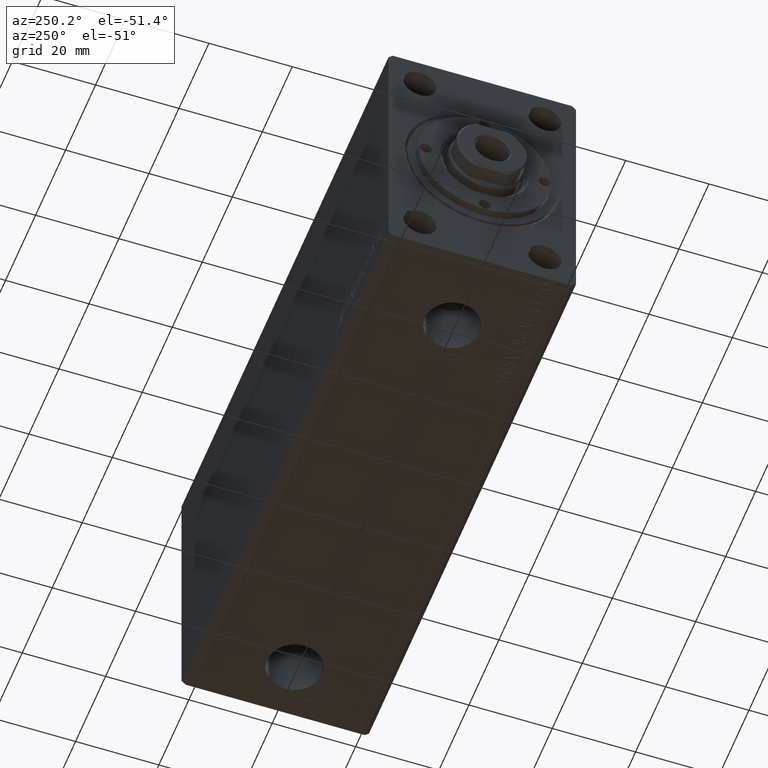
[diagram: clean part render]
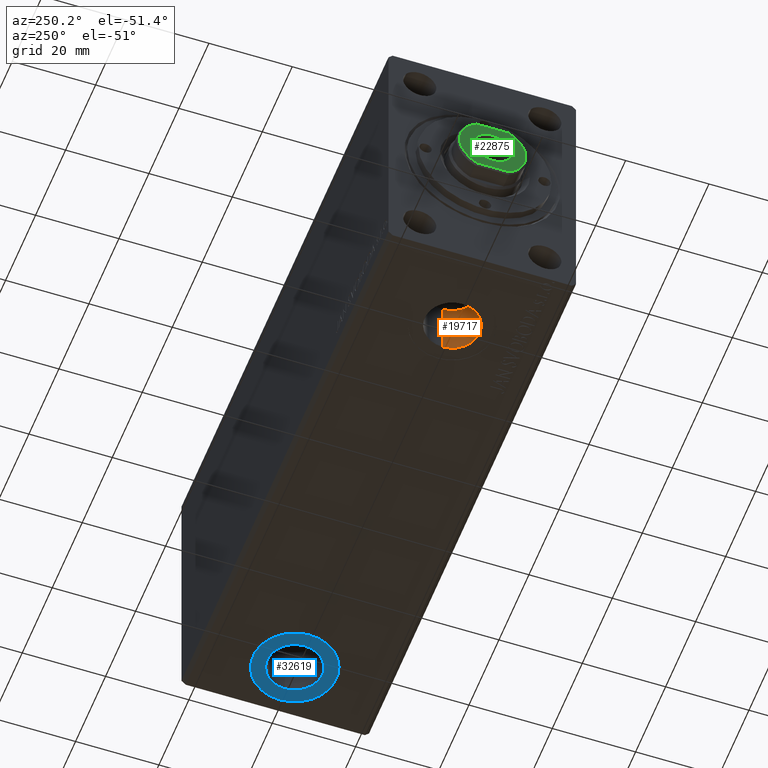
[diagram: same view with three faces highlighted in distinct colors, each labeled with its STEP entity id]
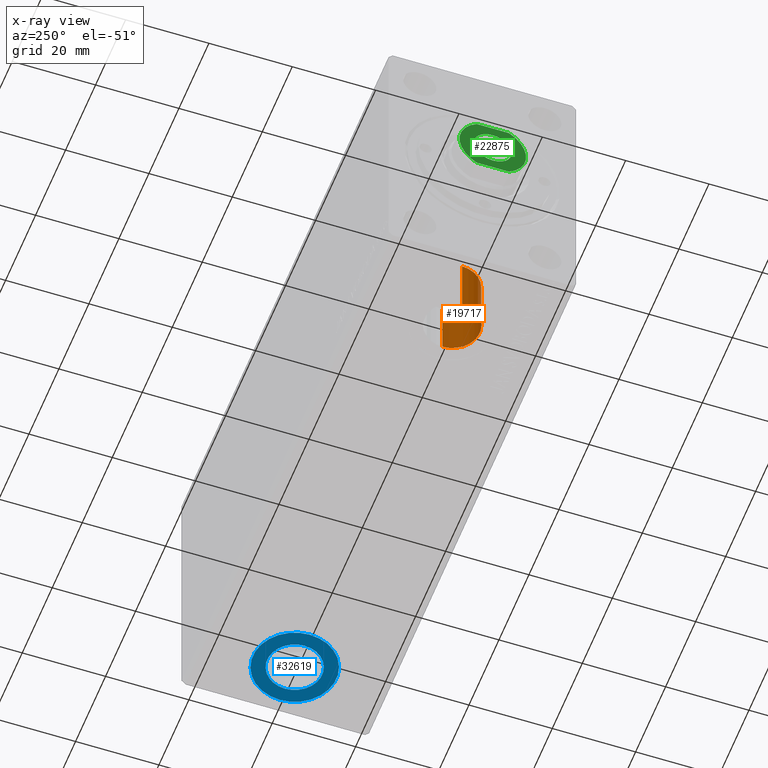
[diagram: x-ray of the same camera — body ghosted, the three highlighted faces saturated]
A machine part, auxiliary view with three faces highlighted in distinct colors.
The next image is the same camera in x-ray (body ghosted, the three faces saturated) — at least one of them is partly hidden behind the body in this view.
Their STEP definitions:

[orange] entity #19717 — the highlighted cylindrical surface (edge-blend (fillet) strip) has radius 6.58 mm, axis along (-0, -0, -1).
#35 = DIRECTION ( 'NONE',  ( -0.000000000000000000, -0.000000000000000000, -1.000000000000000000 ) ) ;
#1018 = VERTEX_POINT ( 'NONE', #38864 ) ;
#1899 = DIRECTION ( 'NONE',  ( -1.000000000000000000, 0.000000000000000000, 0.000000000000000000 ) ) ;
#2824 = DIRECTION ( 'NONE',  ( -0.000000000000000000, -0.000000000000000000, -1.000000000000000000 ) ) ;
#5784 = EDGE_CURVE ( 'NONE', #10320, #1018, #23450, .T. ) ;
#5851 = CARTESIAN_POINT ( 'NONE',  ( 26.57999999999999829, 3.384576556735897587E-15, -18.79999999999999716 ) ) ;
#5947 = CARTESIAN_POINT ( 'NONE',  ( 13.41999999999999460, 2.578758962896938545E-15, -18.79999999999999716 ) ) ;
#7515 = ORIENTED_EDGE ( 'NONE', *, *, #5784, .T. ) ;
#8921 = ORIENTED_EDGE ( 'NONE', *, *, #27559, .F. ) ;
#9283 = VERTEX_POINT ( 'NONE', #29342 ) ;
#9988 = VECTOR ( 'NONE', #35, 1000.000000000000000 ) ;
#10072 = CARTESIAN_POINT ( 'NONE',  ( 26.57999999999999829, 3.384576556735897587E-15, -18.79999999999999716 ) ) ;
#10320 = VERTEX_POINT ( 'NONE', #5851 ) ;
#12795 = AXIS2_PLACEMENT_3D ( 'NONE', #36569, #30538, #20497 ) ;
#13049 = EDGE_CURVE ( 'NONE', #1018, #9283, #26735, .T. ) ;
#15680 = CARTESIAN_POINT ( 'NONE',  ( 19.99999999999999645, 2.578758962896938545E-15, -32.39999999999999858 ) ) ;
#17511 = AXIS2_PLACEMENT_3D ( 'NONE', #15680, #28845, #25945 ) ;
#19717 = ADVANCED_FACE ( 'NONE', ( #26750 ), #43491, .F. ) ;
#19773 = LINE ( 'NONE', #5947, #28254 ) ;
#20497 = DIRECTION ( 'NONE',  ( -1.000000000000000000, 0.000000000000000000, 0.000000000000000000 ) ) ;
#23450 = LINE ( 'NONE', #10072, #9988 ) ;
#25945 = DIRECTION ( 'NONE',  ( -1.000000000000000000, 0.000000000000000000, 0.000000000000000000 ) ) ;
#26735 = CIRCLE ( 'NONE', #17511, 6.580000000000002736 ) ;
#26750 = FACE_OUTER_BOUND ( 'NONE', #41401, .T. ) ;
#27396 = EDGE_CURVE ( 'NONE', #40463, #9283, #19773, .T. ) ;
#27559 = EDGE_CURVE ( 'NONE', #10320, #40463, #36075, .T. ) ;
#28254 = VECTOR ( 'NONE', #2824, 1000.000000000000000 ) ;
#28600 = ORIENTED_EDGE ( 'NONE', *, *, #27396, .F. ) ;
#28845 = DIRECTION ( 'NONE',  ( 0.000000000000000000, 0.000000000000000000, -1.000000000000000000 ) ) ;
#28888 = CARTESIAN_POINT ( 'NONE',  ( 19.99999999999999645, 2.578758962896938545E-15, -18.79999999999999716 ) ) ;
#29342 = CARTESIAN_POINT ( 'NONE',  ( 13.41999999999999460, 2.578758962896938545E-15, -32.39999999999999858 ) ) ;
#30538 = DIRECTION ( 'NONE',  ( -0.000000000000000000, -0.000000000000000000, -1.000000000000000000 ) ) ;
#31425 = CARTESIAN_POINT ( 'NONE',  ( 13.41999999999999460, 2.578758962896938545E-15, -18.79999999999999716 ) ) ;
#32456 = DIRECTION ( 'NONE',  ( 0.000000000000000000, 0.000000000000000000, -1.000000000000000000 ) ) ;
#33938 = AXIS2_PLACEMENT_3D ( 'NONE', #28888, #32456, #1899 ) ;
#36075 = CIRCLE ( 'NONE', #33938, 6.580000000000002736 ) ;
#36569 = CARTESIAN_POINT ( 'NONE',  ( 19.99999999999999645, 2.578758962896938545E-15, -18.79999999999999716 ) ) ;
#38864 = CARTESIAN_POINT ( 'NONE',  ( 26.57999999999999829, 3.384576556735897587E-15, -32.39999999999999858 ) ) ;
#40463 = VERTEX_POINT ( 'NONE', #31425 ) ;
#40828 = ORIENTED_EDGE ( 'NONE', *, *, #13049, .T. ) ;
#41401 = EDGE_LOOP ( 'NONE', ( #8921, #7515, #40828, #28600 ) ) ;
#43491 = CYLINDRICAL_SURFACE ( 'NONE', #12795, 6.580000000000002736 ) ;

[blue] entity #32619 — the highlighted planar face has unit normal (0, 0, -1).
#1222 = DIRECTION ( 'NONE',  ( 0.000000000000000000, 0.000000000000000000, -1.000000000000000000 ) ) ;
#1680 = DIRECTION ( 'NONE',  ( -1.000000000000000000, 0.000000000000000000, 0.000000000000000000 ) ) ;
#5085 = DIRECTION ( 'NONE',  ( -1.000000000000000000, 0.000000000000000000, 0.000000000000000000 ) ) ;
#6329 = VERTEX_POINT ( 'NONE', #42013 ) ;
#8122 = CARTESIAN_POINT ( 'NONE',  ( 125.0000000000000000, -8.633274973465969897E-15, -32.39999999999999858 ) ) ;
#9238 = CIRCLE ( 'NONE', #27062, 9.999999999999994671 ) ;
#9305 = EDGE_CURVE ( 'NONE', #6329, #28270, #9238, .T. ) ;
#9888 = AXIS2_PLACEMENT_3D ( 'NONE', #8122, #1222, #24202 ) ;
#10436 = AXIS2_PLACEMENT_3D ( 'NONE', #22333, #24814, #35083 ) ;
#11200 = FACE_BOUND ( 'NONE', #23107, .T. ) ;
#11396 = CIRCLE ( 'NONE', #14272, 6.580000000000002736 ) ;
#11561 = ORIENTED_EDGE ( 'NONE', *, *, #38581, .F. ) ;
#12347 = CARTESIAN_POINT ( 'NONE',  ( 118.4200000000000017, -8.633274973465969897E-15, -32.39999999999999858 ) ) ;
#12749 = CIRCLE ( 'NONE', #9888, 6.580000000000002736 ) ;
#14272 = AXIS2_PLACEMENT_3D ( 'NONE', #19509, #16162, #5085 ) ;
#16162 = DIRECTION ( 'NONE',  ( 0.000000000000000000, 0.000000000000000000, -1.000000000000000000 ) ) ;
#17677 = DIRECTION ( 'NONE',  ( 0.000000000000000000, 0.000000000000000000, -1.000000000000000000 ) ) ;
#19062 = CARTESIAN_POINT ( 'NONE',  ( 125.0000000000000000, -8.633274973465969897E-15, -32.39999999999999858 ) ) ;
#19509 = CARTESIAN_POINT ( 'NONE',  ( 125.0000000000000000, -8.633274973465969897E-15, -32.39999999999999858 ) ) ;
#19792 = ORIENTED_EDGE ( 'NONE', *, *, #30768, .T. ) ;
#19878 = EDGE_CURVE ( 'NONE', #37868, #25350, #11396, .T. ) ;
#22333 = CARTESIAN_POINT ( 'NONE',  ( 125.0000000000000000, -8.633274973465969897E-15, -32.39999999999999858 ) ) ;
#22515 = CARTESIAN_POINT ( 'NONE',  ( 135.0000000000000000, -7.408628174318619993E-15, -32.39999999999999858 ) ) ;
#22622 = EDGE_LOOP ( 'NONE', ( #29984, #19792 ) ) ;
#23107 = EDGE_LOOP ( 'NONE', ( #38123, #11561 ) ) ;
#24202 = DIRECTION ( 'NONE',  ( -1.000000000000000000, 0.000000000000000000, 0.000000000000000000 ) ) ;
#24814 = DIRECTION ( 'NONE',  ( 0.000000000000000000, 0.000000000000000000, -1.000000000000000000 ) ) ;
#25350 = VERTEX_POINT ( 'NONE', #41201 ) ;
#25362 = CIRCLE ( 'NONE', #36767, 9.999999999999994671 ) ;
#27062 = AXIS2_PLACEMENT_3D ( 'NONE', #19062, #36466, #1680 ) ;
#27725 = DIRECTION ( 'NONE',  ( -1.000000000000000000, 0.000000000000000000, 0.000000000000000000 ) ) ;
#28270 = VERTEX_POINT ( 'NONE', #22515 ) ;
#29984 = ORIENTED_EDGE ( 'NONE', *, *, #9305, .T. ) ;
#30768 = EDGE_CURVE ( 'NONE', #28270, #6329, #25362, .T. ) ;
#32619 = ADVANCED_FACE ( 'NONE', ( #11200, #39059 ), #35950, .T. ) ;
#35083 = DIRECTION ( 'NONE',  ( -1.000000000000000000, 0.000000000000000000, -0.000000000000000000 ) ) ;
#35950 = PLANE ( 'NONE',  #10436 ) ;
#36466 = DIRECTION ( 'NONE',  ( 0.000000000000000000, 0.000000000000000000, -1.000000000000000000 ) ) ;
#36767 = AXIS2_PLACEMENT_3D ( 'NONE', #43573, #17677, #27725 ) ;
#37868 = VERTEX_POINT ( 'NONE', #12347 ) ;
#38123 = ORIENTED_EDGE ( 'NONE', *, *, #19878, .F. ) ;
#38581 = EDGE_CURVE ( 'NONE', #25350, #37868, #12749, .T. ) ;
#39059 = FACE_OUTER_BOUND ( 'NONE', #22622, .T. ) ;
#41201 = CARTESIAN_POINT ( 'NONE',  ( 131.5800000000000125, -7.827457379627010855E-15, -32.39999999999999858 ) ) ;
#42013 = CARTESIAN_POINT ( 'NONE',  ( 115.0000000000000000, -8.633274973465969897E-15, -32.39999999999999858 ) ) ;
#43573 = CARTESIAN_POINT ( 'NONE',  ( 125.0000000000000000, -8.633274973465969897E-15, -32.39999999999999858 ) ) ;

[green] entity #22875 — the highlighted planar face has unit normal (-1, 0, 0).
#133 = DIRECTION ( 'NONE',  ( 1.000000000000000000, 0.000000000000000000, 0.000000000000000000 ) ) ;
#1823 = CARTESIAN_POINT ( 'NONE',  ( -7.000000000000013323, -4.000000000000001776, 132.2000000000000171 ) ) ;
#2158 = AXIS2_PLACEMENT_3D ( 'NONE', #36209, #18601, #16111 ) ;
#3286 = CARTESIAN_POINT ( 'NONE',  ( 7.000000000000013323, 4.000000000000001776, 132.2000000000000171 ) ) ;
#4368 = CARTESIAN_POINT ( 'NONE',  ( 0.000000000000000000, 0.000000000000000000, 132.2000000000000171 ) ) ;
#4721 = VERTEX_POINT ( 'NONE', #25842 ) ;
#4932 = CARTESIAN_POINT ( 'NONE',  ( 0.000000000000000000, 0.000000000000000000, 132.2000000000000171 ) ) ;
#5131 = FACE_BOUND ( 'NONE', #9889, .T. ) ;
#6098 = AXIS2_PLACEMENT_3D ( 'NONE', #4368, #41160, #28014 ) ;
#6422 = DIRECTION ( 'NONE',  ( 0.000000000000000000, 1.000000000000000000, 0.000000000000000000 ) ) ;
#7737 = CARTESIAN_POINT ( 'NONE',  ( 4.550000000000012257, 0.000000000000000000, 132.2000000000000171 ) ) ;
#9392 = VERTEX_POINT ( 'NONE', #29546 ) ;
#9889 = EDGE_LOOP ( 'NONE', ( #38210, #34075 ) ) ;
#11130 = EDGE_CURVE ( 'NONE', #24477, #22800, #11415, .T. ) ;
#11415 = CIRCLE ( 'NONE', #2158, 8.000000000000014211 ) ;
#11597 = FACE_OUTER_BOUND ( 'NONE', #30293, .T. ) ;
#12160 = VECTOR ( 'NONE', #15430, 1000.000000000000000 ) ;
#13972 = CIRCLE ( 'NONE', #6098, 8.000000000000014211 ) ;
#14984 = DIRECTION ( 'NONE',  ( -0.000000000000000000, -0.000000000000000000, -1.000000000000000000 ) ) ;
#15430 = DIRECTION ( 'NONE',  ( 0.000000000000000000, -1.000000000000000000, 0.000000000000000000 ) ) ;
#16111 = DIRECTION ( 'NONE',  ( 1.000000000000000000, 0.000000000000000000, 0.000000000000000000 ) ) ;
#18509 = CARTESIAN_POINT ( 'NONE',  ( -4.550000000000012257, 5.572142936120472118E-16, 132.2000000000000171 ) ) ;
#18601 = DIRECTION ( 'NONE',  ( 0.000000000000000000, 0.000000000000000000, 1.000000000000000000 ) ) ;
#18737 = PLANE ( 'NONE',  #27411 ) ;
#22105 = DIRECTION ( 'NONE',  ( 1.000000000000000000, 0.000000000000000000, 0.000000000000000000 ) ) ;
#22800 = VERTEX_POINT ( 'NONE', #37497 ) ;
#22875 = ADVANCED_FACE ( 'NONE', ( #11597, #5131 ), #18737, .T. ) ;
#24477 = VERTEX_POINT ( 'NONE', #35623 ) ;
#25093 = ORIENTED_EDGE ( 'NONE', *, *, #11130, .T. ) ;
#25223 = EDGE_CURVE ( 'NONE', #4721, #24477, #33854, .T. ) ;
#25306 = VERTEX_POINT ( 'NONE', #7737 ) ;
#25842 = CARTESIAN_POINT ( 'NONE',  ( 7.000000000000013323, -3.872983346207435673, 132.2000000000000171 ) ) ;
#26490 = EDGE_CURVE ( 'NONE', #9392, #4721, #13972, .T. ) ;
#26589 = ORIENTED_EDGE ( 'NONE', *, *, #26490, .T. ) ;
#27411 = AXIS2_PLACEMENT_3D ( 'NONE', #35482, #42603, #42828 ) ;
#28014 = DIRECTION ( 'NONE',  ( 1.000000000000000000, 0.000000000000000000, 0.000000000000000000 ) ) ;
#28305 = AXIS2_PLACEMENT_3D ( 'NONE', #40497, #37376, #133 ) ;
#29546 = CARTESIAN_POINT ( 'NONE',  ( -7.000000000000013323, -3.872983346207435673, 132.2000000000000171 ) ) ;
#30293 = EDGE_LOOP ( 'NONE', ( #37216, #26589, #30710, #25093 ) ) ;
#30710 = ORIENTED_EDGE ( 'NONE', *, *, #25223, .T. ) ;
#32383 = LINE ( 'NONE', #1823, #12160 ) ;
#33419 = EDGE_CURVE ( 'NONE', #25306, #40020, #36828, .T. ) ;
#33854 = LINE ( 'NONE', #3286, #43142 ) ;
#34075 = ORIENTED_EDGE ( 'NONE', *, *, #38218, .T. ) ;
#34834 = CIRCLE ( 'NONE', #39080, 4.550000000000012257 ) ;
#35482 = CARTESIAN_POINT ( 'NONE',  ( 0.000000000000000000, 0.000000000000000000, 132.2000000000000171 ) ) ;
#35623 = CARTESIAN_POINT ( 'NONE',  ( 7.000000000000007105, 3.872983346207435673, 132.2000000000000171 ) ) ;
#36209 = CARTESIAN_POINT ( 'NONE',  ( 0.000000000000000000, 0.000000000000000000, 132.2000000000000171 ) ) ;
#36828 = CIRCLE ( 'NONE', #28305, 4.550000000000012257 ) ;
#37216 = ORIENTED_EDGE ( 'NONE', *, *, #43558, .T. ) ;
#37376 = DIRECTION ( 'NONE',  ( -0.000000000000000000, -0.000000000000000000, -1.000000000000000000 ) ) ;
#37497 = CARTESIAN_POINT ( 'NONE',  ( -7.000000000000013323, 3.872983346207435673, 132.2000000000000171 ) ) ;
#38210 = ORIENTED_EDGE ( 'NONE', *, *, #33419, .T. ) ;
#38218 = EDGE_CURVE ( 'NONE', #40020, #25306, #34834, .T. ) ;
#39080 = AXIS2_PLACEMENT_3D ( 'NONE', #4932, #14984, #22105 ) ;
#40020 = VERTEX_POINT ( 'NONE', #18509 ) ;
#40497 = CARTESIAN_POINT ( 'NONE',  ( 0.000000000000000000, 0.000000000000000000, 132.2000000000000171 ) ) ;
#41160 = DIRECTION ( 'NONE',  ( 0.000000000000000000, 0.000000000000000000, 1.000000000000000000 ) ) ;
#42603 = DIRECTION ( 'NONE',  ( 0.000000000000000000, 0.000000000000000000, 1.000000000000000000 ) ) ;
#42828 = DIRECTION ( 'NONE',  ( 1.000000000000000000, 0.000000000000000000, -0.000000000000000000 ) ) ;
#43142 = VECTOR ( 'NONE', #6422, 1000.000000000000000 ) ;
#43558 = EDGE_CURVE ( 'NONE', #22800, #9392, #32383, .T. ) ;